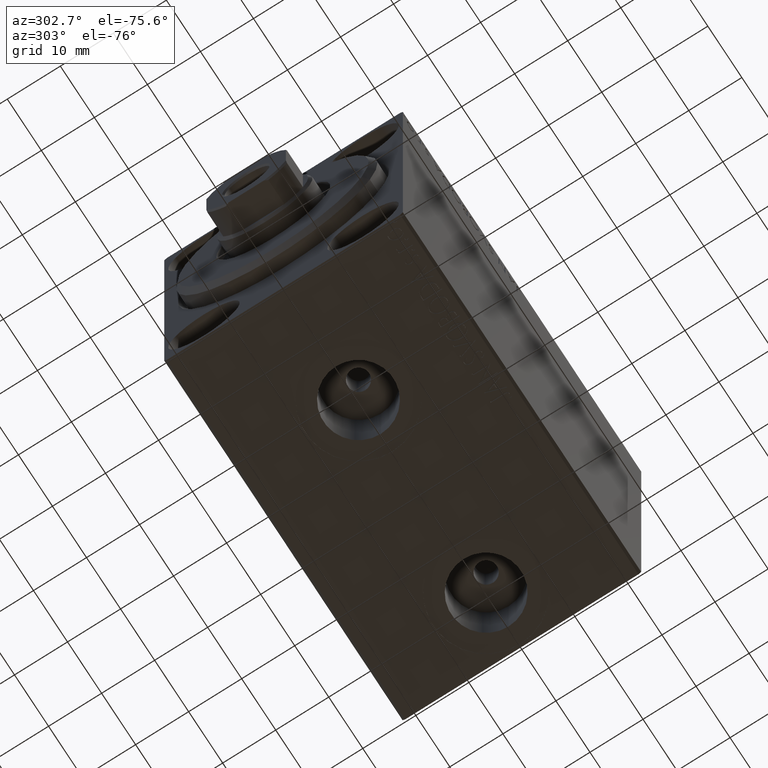
[diagram: clean part render]
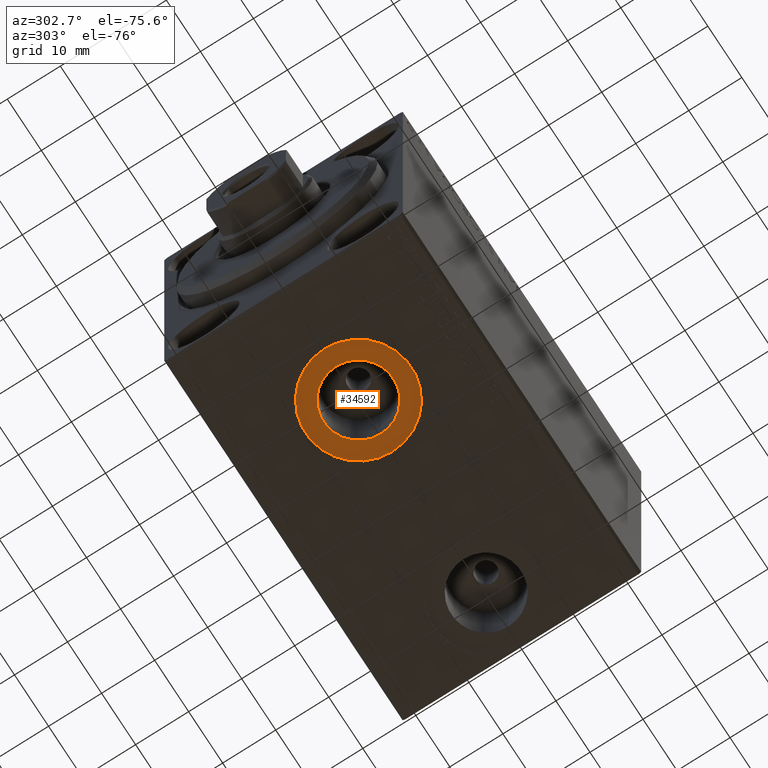
[diagram: same view with one face highlighted and labeled with its STEP entity id]
A machine part, auxiliary view. The second image highlights one B-rep face of the part: STEP entity #34592.
In plain terms, the highlighted planar face has unit normal (0, 0, -1).
Its self-contained STEP definition (entity closure, byte-faithful):
#778 = CARTESIAN_POINT ( 'NONE',  ( 22.00000000000000000, -3.594347949397319039E-15, -32.40000000000000568 ) ) ;
#1036 = DIRECTION ( 'NONE',  ( -1.000000000000000000, 0.000000000000000000, -0.000000000000000000 ) ) ;
#3114 = CARTESIAN_POINT ( 'NONE',  ( 22.00000000000000000, -3.594347949397319039E-15, -32.40000000000000568 ) ) ;
#3596 = CARTESIAN_POINT ( 'NONE',  ( 15.41999999999999638, -3.594347949397319039E-15, -32.40000000000000568 ) ) ;
#4419 = EDGE_LOOP ( 'NONE', ( #33176, #17372 ) ) ;
#4699 = DIRECTION ( 'NONE',  ( 0.000000000000000000, 0.000000000000000000, -1.000000000000000000 ) ) ;
#5145 = FACE_BOUND ( 'NONE', #21329, .T. ) ;
#6735 = DIRECTION ( 'NONE',  ( -1.000000000000000000, 0.000000000000000000, 0.000000000000000000 ) ) ;
#7029 = VERTEX_POINT ( 'NONE', #3596 ) ;
#7196 = DIRECTION ( 'NONE',  ( 0.000000000000000000, 0.000000000000000000, -1.000000000000000000 ) ) ;
#7899 = PLANE ( 'NONE',  #17279 ) ;
#8494 = DIRECTION ( 'NONE',  ( 0.000000000000000000, 0.000000000000000000, -1.000000000000000000 ) ) ;
#16221 = EDGE_CURVE ( 'NONE', #7029, #29885, #36944, .T. ) ;
#17279 = AXIS2_PLACEMENT_3D ( 'NONE', #25739, #4699, #1036 ) ;
#17372 = ORIENTED_EDGE ( 'NONE', *, *, #25546, .T. ) ;
#20144 = AXIS2_PLACEMENT_3D ( 'NONE', #3114, #31007, #34904 ) ;
#21149 = CARTESIAN_POINT ( 'NONE',  ( 22.00000000000000000, -3.594347949397319039E-15, -32.40000000000000568 ) ) ;
#21329 = EDGE_LOOP ( 'NONE', ( #25124, #42202 ) ) ;
#22694 = VERTEX_POINT ( 'NONE', #42560 ) ;
#23270 = CIRCLE ( 'NONE', #35672, 6.580000000000002736 ) ;
#25124 = ORIENTED_EDGE ( 'NONE', *, *, #16221, .F. ) ;
#25202 = CIRCLE ( 'NONE', #33972, 10.00000000000000000 ) ;
#25546 = EDGE_CURVE ( 'NONE', #39670, #22694, #25202, .T. ) ;
#25681 = CARTESIAN_POINT ( 'NONE',  ( 28.58000000000000185, -2.788530355558360786E-15, -32.40000000000000568 ) ) ;
#25739 = CARTESIAN_POINT ( 'NONE',  ( 0.000000000000000000, 0.000000000000000000, -32.40000000000000568 ) ) ;
#29885 = VERTEX_POINT ( 'NONE', #25681 ) ;
#31007 = DIRECTION ( 'NONE',  ( 0.000000000000000000, 0.000000000000000000, -1.000000000000000000 ) ) ;
#31487 = EDGE_CURVE ( 'NONE', #22694, #39670, #33964, .T. ) ;
#32520 = CARTESIAN_POINT ( 'NONE',  ( 22.00000000000000000, -3.594347949397319039E-15, -32.40000000000000568 ) ) ;
#33176 = ORIENTED_EDGE ( 'NONE', *, *, #31487, .T. ) ;
#33964 = CIRCLE ( 'NONE', #39815, 10.00000000000000000 ) ;
#33972 = AXIS2_PLACEMENT_3D ( 'NONE', #21149, #7196, #6735 ) ;
#34592 = ADVANCED_FACE ( 'NONE', ( #5145, #39456 ), #7899, .T. ) ;
#34904 = DIRECTION ( 'NONE',  ( -1.000000000000000000, 0.000000000000000000, 0.000000000000000000 ) ) ;
#35542 = DIRECTION ( 'NONE',  ( -1.000000000000000000, 0.000000000000000000, 0.000000000000000000 ) ) ;
#35672 = AXIS2_PLACEMENT_3D ( 'NONE', #778, #42384, #35542 ) ;
#36619 = DIRECTION ( 'NONE',  ( -1.000000000000000000, 0.000000000000000000, 0.000000000000000000 ) ) ;
#36944 = CIRCLE ( 'NONE', #20144, 6.580000000000002736 ) ;
#39310 = EDGE_CURVE ( 'NONE', #29885, #7029, #23270, .T. ) ;
#39456 = FACE_OUTER_BOUND ( 'NONE', #4419, .T. ) ;
#39670 = VERTEX_POINT ( 'NONE', #41691 ) ;
#39815 = AXIS2_PLACEMENT_3D ( 'NONE', #32520, #8494, #36619 ) ;
#41691 = CARTESIAN_POINT ( 'NONE',  ( 32.00000000000000000, -2.369701150249966375E-15, -32.40000000000000568 ) ) ;
#42202 = ORIENTED_EDGE ( 'NONE', *, *, #39310, .F. ) ;
#42384 = DIRECTION ( 'NONE',  ( 0.000000000000000000, 0.000000000000000000, -1.000000000000000000 ) ) ;
#42560 = CARTESIAN_POINT ( 'NONE',  ( 11.99999999999999822, -3.594347949397319039E-15, -32.40000000000000568 ) ) ;